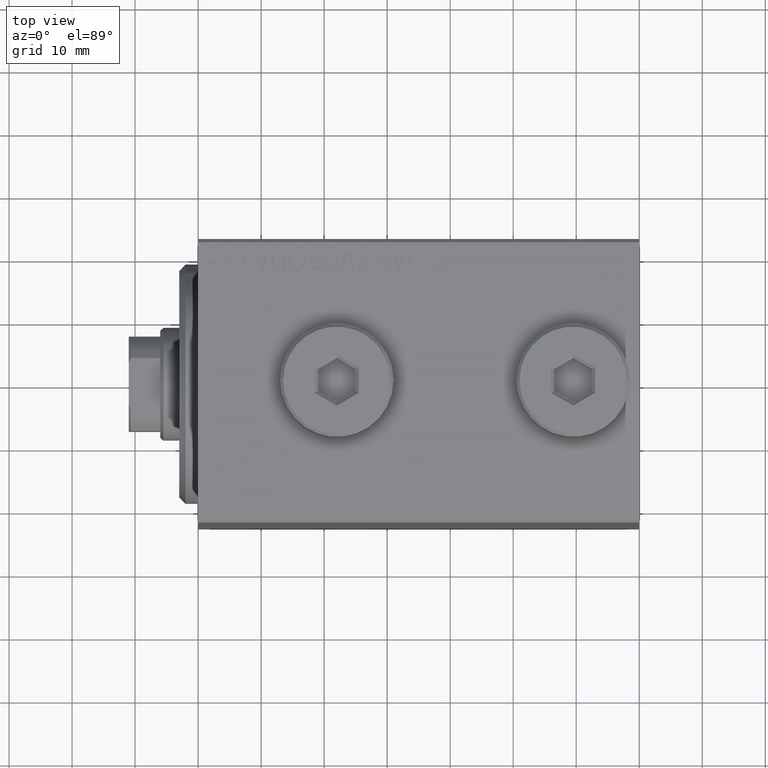
[diagram: clean part render]
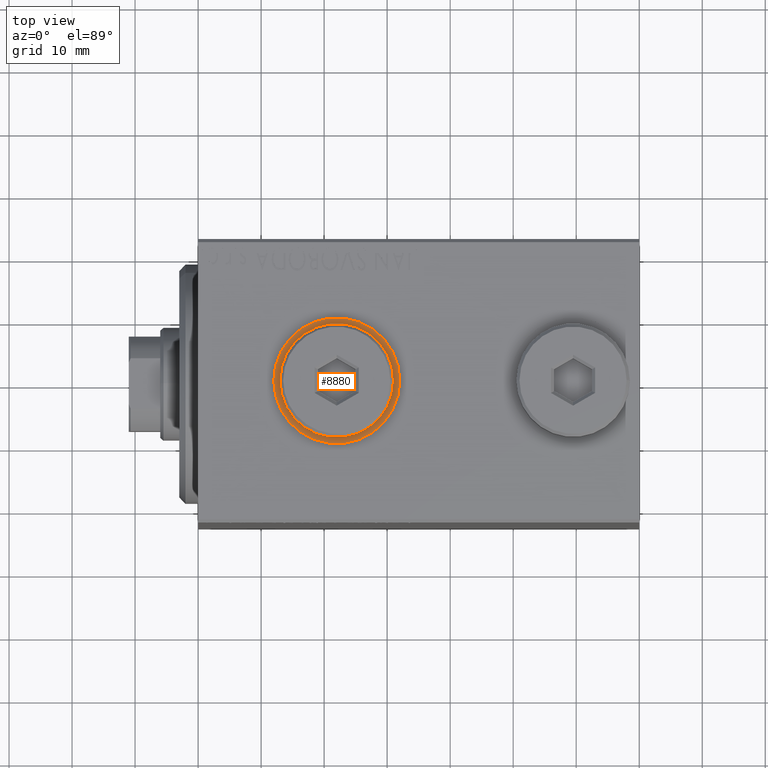
[diagram: same view with one face highlighted and labeled with its STEP entity id]
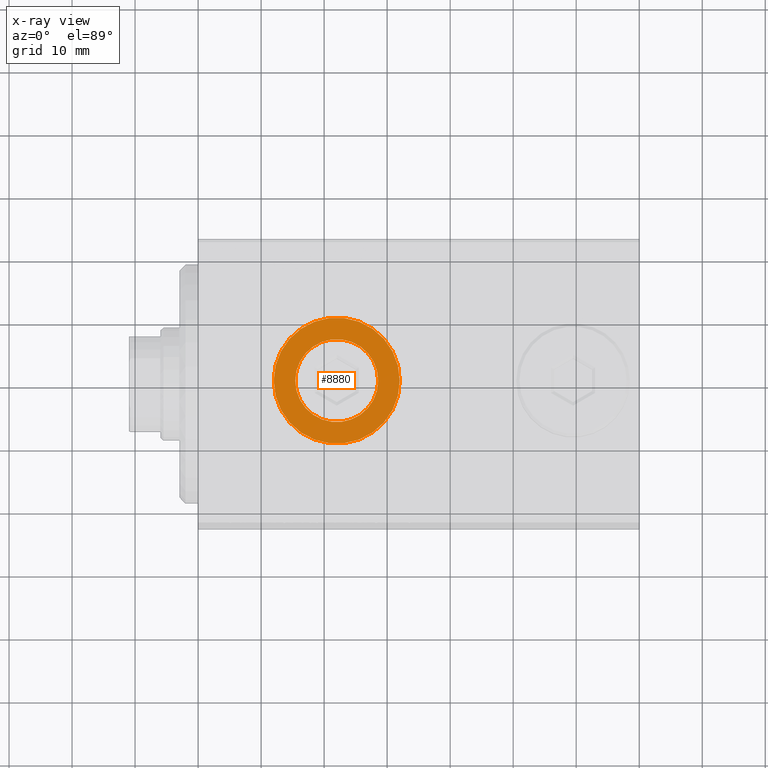
[diagram: x-ray of the same camera — body ghosted, the highlighted face saturated]
A machine part, top view. The second image highlights one B-rep face of the part: STEP entity #8880.
The next image is the same camera in x-ray: the body ghosted, the highlighted face saturated — about 0% of this face is hidden behind the body in this view.
In plain terms, the highlighted planar face has unit normal (0, 0, 1).
Its self-contained STEP definition (entity closure, byte-faithful):
#205 = AXIS2_PLACEMENT_3D ( 'NONE', #21802, #11973, #35503 ) ;
#1150 = CARTESIAN_POINT ( 'NONE',  ( 15.41999999999999993, -4.205605781205151569E-15, 32.39999999999999858 ) ) ;
#2119 = ORIENTED_EDGE ( 'NONE', *, *, #16143, .T. ) ;
#2146 = CARTESIAN_POINT ( 'NONE',  ( 22.00000000000000000, -5.011423375044109822E-15, 32.39999999999999858 ) ) ;
#3437 = CARTESIAN_POINT ( 'NONE',  ( 31.99999999999999289, -5.011423375044109822E-15, 32.39999999999999858 ) ) ;
#4200 = CARTESIAN_POINT ( 'NONE',  ( 22.00000000000000000, -5.011423375044109822E-15, 32.39999999999999858 ) ) ;
#4647 = VERTEX_POINT ( 'NONE', #10776 ) ;
#5867 = EDGE_LOOP ( 'NONE', ( #29765, #17800 ) ) ;
#7173 = AXIS2_PLACEMENT_3D ( 'NONE', #2146, #40775, #16108 ) ;
#7649 = DIRECTION ( 'NONE',  ( 0.000000000000000000, 0.000000000000000000, 1.000000000000000000 ) ) ;
#8593 = DIRECTION ( 'NONE',  ( 0.000000000000000000, 0.000000000000000000, 1.000000000000000000 ) ) ;
#8880 = ADVANCED_FACE ( 'NONE', ( #39887, #25958 ), #26411, .T. ) ;
#9337 = AXIS2_PLACEMENT_3D ( 'NONE', #30288, #8593, #22523 ) ;
#10776 = CARTESIAN_POINT ( 'NONE',  ( 12.00000000000000355, -3.786776575896757552E-15, 32.39999999999999858 ) ) ;
#11973 = DIRECTION ( 'NONE',  ( 0.000000000000000000, 0.000000000000000000, 1.000000000000000000 ) ) ;
#12022 = EDGE_LOOP ( 'NONE', ( #33364, #2119 ) ) ;
#16108 = DIRECTION ( 'NONE',  ( 1.000000000000000000, 0.000000000000000000, 0.000000000000000000 ) ) ;
#16143 = EDGE_CURVE ( 'NONE', #4647, #44492, #40892, .T. ) ;
#17800 = ORIENTED_EDGE ( 'NONE', *, *, #28041, .F. ) ;
#20137 = CARTESIAN_POINT ( 'NONE',  ( 22.00000000000000000, -5.011423375044109822E-15, 32.39999999999999858 ) ) ;
#20475 = AXIS2_PLACEMENT_3D ( 'NONE', #4200, #7649, #29709 ) ;
#21802 = CARTESIAN_POINT ( 'NONE',  ( 22.00000000000000000, -5.011423375044109822E-15, 32.39999999999999858 ) ) ;
#22523 = DIRECTION ( 'NONE',  ( 1.000000000000000000, 0.000000000000000000, -0.000000000000000000 ) ) ;
#22704 = CARTESIAN_POINT ( 'NONE',  ( 28.57999999999999829, -5.011423375044109822E-15, 32.39999999999999858 ) ) ;
#24697 = CIRCLE ( 'NONE', #7173, 6.579999999999999183 ) ;
#25239 = VERTEX_POINT ( 'NONE', #22704 ) ;
#25958 = FACE_OUTER_BOUND ( 'NONE', #12022, .T. ) ;
#26411 = PLANE ( 'NONE',  #9337 ) ;
#27227 = DIRECTION ( 'NONE',  ( 0.000000000000000000, 0.000000000000000000, 1.000000000000000000 ) ) ;
#28041 = EDGE_CURVE ( 'NONE', #41608, #25239, #43983, .T. ) ;
#28640 = AXIS2_PLACEMENT_3D ( 'NONE', #20137, #27227, #34061 ) ;
#29709 = DIRECTION ( 'NONE',  ( 1.000000000000000000, 0.000000000000000000, 0.000000000000000000 ) ) ;
#29765 = ORIENTED_EDGE ( 'NONE', *, *, #38602, .F. ) ;
#30288 = CARTESIAN_POINT ( 'NONE',  ( 22.00000000000000000, -5.011423375044109822E-15, 32.39999999999999858 ) ) ;
#33364 = ORIENTED_EDGE ( 'NONE', *, *, #41418, .T. ) ;
#34061 = DIRECTION ( 'NONE',  ( 1.000000000000000000, 0.000000000000000000, 0.000000000000000000 ) ) ;
#35503 = DIRECTION ( 'NONE',  ( 1.000000000000000000, 0.000000000000000000, 0.000000000000000000 ) ) ;
#38602 = EDGE_CURVE ( 'NONE', #25239, #41608, #24697, .T. ) ;
#39887 = FACE_BOUND ( 'NONE', #5867, .T. ) ;
#40775 = DIRECTION ( 'NONE',  ( 0.000000000000000000, 0.000000000000000000, 1.000000000000000000 ) ) ;
#40892 = CIRCLE ( 'NONE', #20475, 9.999999999999994671 ) ;
#41086 = CIRCLE ( 'NONE', #28640, 9.999999999999994671 ) ;
#41418 = EDGE_CURVE ( 'NONE', #44492, #4647, #41086, .T. ) ;
#41608 = VERTEX_POINT ( 'NONE', #1150 ) ;
#43983 = CIRCLE ( 'NONE', #205, 6.579999999999999183 ) ;
#44492 = VERTEX_POINT ( 'NONE', #3437 ) ;